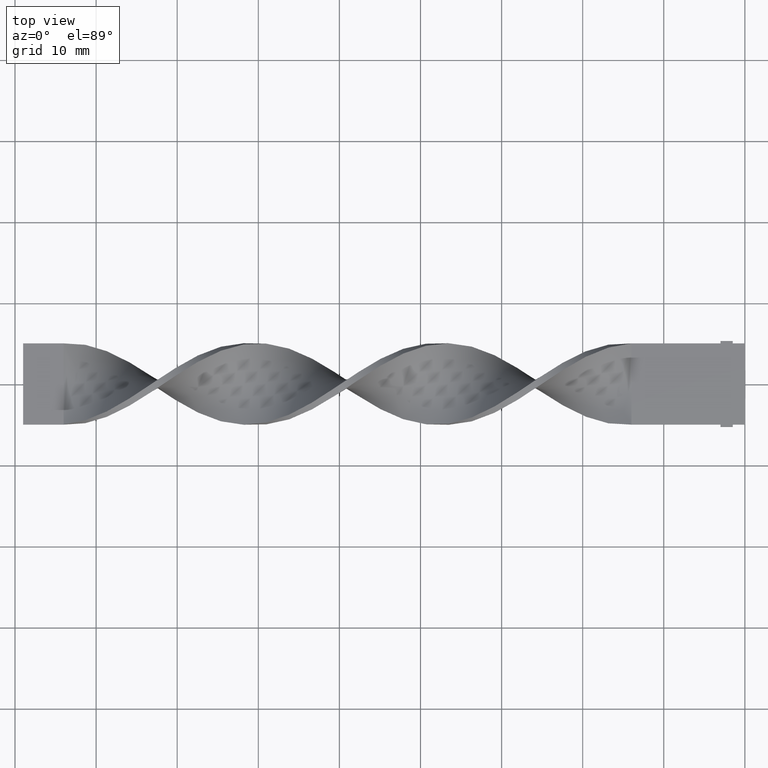
[diagram: clean part render]
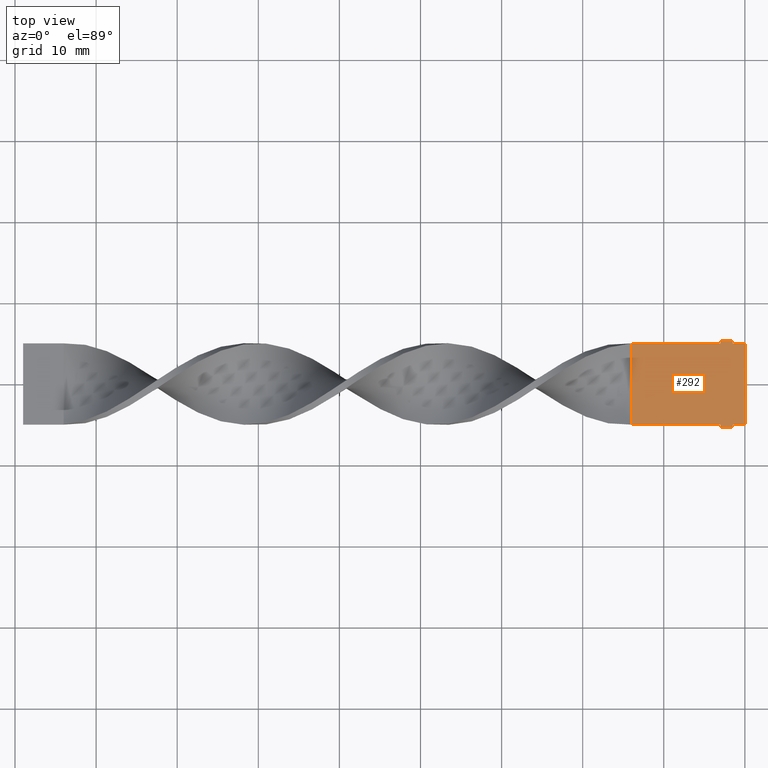
[diagram: same view with one face highlighted and labeled with its STEP entity id]
A machine part, top view. The second image highlights one B-rep face of the part: STEP entity #292.
In plain terms, the highlighted planar face has unit normal (0, 0, 1).
Its self-contained STEP definition (entity closure, byte-faithful):
#5 = VERTEX_POINT ( 'NONE', #707 ) ;
#13 = VERTEX_POINT ( 'NONE', #1213 ) ;
#25 = DIRECTION ( 'NONE',  ( 0.000000000000000000, -1.000000000000000000, 0.000000000000000000 ) ) ;
#46 = LINE ( 'NONE', #412, #109 ) ;
#48 = VECTOR ( 'NONE', #1179, 1000.000000000000000 ) ;
#53 = EDGE_CURVE ( 'NONE', #226, #450, #575, .T. ) ;
#54 = CARTESIAN_POINT ( 'NONE',  ( -1.224646799147352862E-15, 4.999999999999999112, 0.5000000000000000000 ) ) ;
#55 = VERTEX_POINT ( 'NONE', #1581 ) ;
#58 = DIRECTION ( 'NONE',  ( -1.000000000000000000, 0.000000000000000000, 0.000000000000000000 ) ) ;
#60 = ORIENTED_EDGE ( 'NONE', *, *, #1391, .F. ) ;
#63 = CARTESIAN_POINT ( 'NONE',  ( -2.999999999999994671, 4.999999999999999112, 0.5000000000000000000 ) ) ;
#70 = DIRECTION ( 'NONE',  ( -1.000000000000000000, 0.000000000000000000, 0.000000000000000000 ) ) ;
#90 = EDGE_LOOP ( 'NONE', ( #830, #1258, #1257, #1043, #1272, #572, #1184, #1241, #1615, #1374, #378, #60 ) ) ;
#109 = VECTOR ( 'NONE', #70, 1000.000000000000000 ) ;
#131 = CARTESIAN_POINT ( 'NONE',  ( -13.99999999999999822, 4.999999999999997335, 0.5000000000000000000 ) ) ;
#147 = VERTEX_POINT ( 'NONE', #1507 ) ;
#167 = AXIS2_PLACEMENT_3D ( 'NONE', #417, #1539, #1501 ) ;
#172 = CARTESIAN_POINT ( 'NONE',  ( -2.999999999999994671, 4.999999999999999112, 0.5000000000000000000 ) ) ;
#203 = VECTOR ( 'NONE', #1479, 1000.000000000000000 ) ;
#226 = VERTEX_POINT ( 'NONE', #644 ) ;
#253 = LINE ( 'NONE', #264, #203 ) ;
#264 = CARTESIAN_POINT ( 'NONE',  ( -2.999999999999993339, -5.299999999999998934, 0.5000000000000000000 ) ) ;
#289 = CARTESIAN_POINT ( 'NONE',  ( -1.499999999999993561, -4.999999999999999112, 0.5000000000000000000 ) ) ;
#292 = ADVANCED_FACE ( 'NONE', ( #543 ), #1029, .T. ) ;
#373 = DIRECTION ( 'NONE',  ( 1.734723475976807341E-16, -1.000000000000000000, 0.000000000000000000 ) ) ;
#378 = ORIENTED_EDGE ( 'NONE', *, *, #582, .F. ) ;
#379 = VERTEX_POINT ( 'NONE', #1375 ) ;
#404 = CARTESIAN_POINT ( 'NONE',  ( -2.999999999999993339, -4.999999999999999112, 0.5000000000000000000 ) ) ;
#412 = CARTESIAN_POINT ( 'NONE',  ( -1.499999999999993561, -5.299999999999998934, 0.5000000000000000000 ) ) ;
#417 = CARTESIAN_POINT ( 'NONE',  ( 0.000000000000000000, 0.000000000000000000, 0.5000000000000000000 ) ) ;
#418 = EDGE_CURVE ( 'NONE', #1018, #1078, #1530, .T. ) ;
#425 = LINE ( 'NONE', #404, #48 ) ;
#437 = EDGE_CURVE ( 'NONE', #617, #1515, #684, .T. ) ;
#450 = VERTEX_POINT ( 'NONE', #804 ) ;
#486 = VECTOR ( 'NONE', #1559, 1000.000000000000000 ) ;
#543 = FACE_OUTER_BOUND ( 'NONE', #90, .T. ) ;
#547 = CARTESIAN_POINT ( 'NONE',  ( -1.499999999999994893, 5.299999999999998934, 0.5000000000000000000 ) ) ;
#548 = CARTESIAN_POINT ( 'NONE',  ( -13.99999999999999822, 4.999999999999997335, 0.5000000000000000000 ) ) ;
#556 = DIRECTION ( 'NONE',  ( 0.000000000000000000, -1.000000000000000000, 0.000000000000000000 ) ) ;
#572 = ORIENTED_EDGE ( 'NONE', *, *, #1597, .T. ) ;
#575 = LINE ( 'NONE', #1085, #486 ) ;
#582 = EDGE_CURVE ( 'NONE', #5, #1505, #46, .T. ) ;
#617 = VERTEX_POINT ( 'NONE', #63 ) ;
#644 = CARTESIAN_POINT ( 'NONE',  ( 1.925929944387235853E-31, -4.999999999999999112, 0.5000000000000000000 ) ) ;
#681 = DIRECTION ( 'NONE',  ( -1.224646799147353207E-16, 1.000000000000000000, 0.000000000000000000 ) ) ;
#684 = LINE ( 'NONE', #172, #1055 ) ;
#707 = CARTESIAN_POINT ( 'NONE',  ( -1.499999999999993561, -5.299999999999998934, 0.5000000000000000000 ) ) ;
#804 = CARTESIAN_POINT ( 'NONE',  ( -1.499999999999993561, -4.999999999999999112, 0.5000000000000000000 ) ) ;
#815 = DIRECTION ( 'NONE',  ( -1.000000000000000000, -1.577021341797097067E-16, 0.000000000000000000 ) ) ;
#830 = ORIENTED_EDGE ( 'NONE', *, *, #53, .F. ) ;
#874 = EDGE_CURVE ( 'NONE', #1505, #147, #253, .T. ) ;
#885 = EDGE_CURVE ( 'NONE', #379, #1018, #1145, .T. ) ;
#894 = LINE ( 'NONE', #289, #921 ) ;
#909 = CARTESIAN_POINT ( 'NONE',  ( 1.925929944387235853E-31, -4.999999999999999112, 0.5000000000000000000 ) ) ;
#915 = LINE ( 'NONE', #909, #1418 ) ;
#921 = VECTOR ( 'NONE', #556, 1000.000000000000000 ) ;
#964 = EDGE_CURVE ( 'NONE', #1515, #13, #1260, .T. ) ;
#992 = CARTESIAN_POINT ( 'NONE',  ( -2.999999999999994671, 5.299999999999998934, 0.5000000000000000000 ) ) ;
#1002 = DIRECTION ( 'NONE',  ( 0.000000000000000000, 1.000000000000000000, 0.000000000000000000 ) ) ;
#1008 = CARTESIAN_POINT ( 'NONE',  ( -1.499999999999994893, 5.299999999999998934, 0.5000000000000000000 ) ) ;
#1018 = VERTEX_POINT ( 'NONE', #1008 ) ;
#1029 = PLANE ( 'NONE',  #167 ) ;
#1043 = ORIENTED_EDGE ( 'NONE', *, *, #885, .T. ) ;
#1044 = LINE ( 'NONE', #54, #1143 ) ;
#1055 = VECTOR ( 'NONE', #815, 1000.000000000000000 ) ;
#1076 = CARTESIAN_POINT ( 'NONE',  ( -2.999999999999993339, -5.299999999999998934, 0.5000000000000000000 ) ) ;
#1078 = VERTEX_POINT ( 'NONE', #992 ) ;
#1085 = CARTESIAN_POINT ( 'NONE',  ( 1.925929944387235853E-31, -4.999999999999999112, 0.5000000000000000000 ) ) ;
#1120 = VECTOR ( 'NONE', #58, 1000.000000000000000 ) ;
#1134 = LINE ( 'NONE', #1249, #1371 ) ;
#1143 = VECTOR ( 'NONE', #1392, 1000.000000000000000 ) ;
#1145 = LINE ( 'NONE', #1383, #1172 ) ;
#1172 = VECTOR ( 'NONE', #1002, 1000.000000000000000 ) ;
#1179 = DIRECTION ( 'NONE',  ( -1.000000000000000000, -1.577021341797097067E-16, 0.000000000000000000 ) ) ;
#1184 = ORIENTED_EDGE ( 'NONE', *, *, #437, .T. ) ;
#1213 = CARTESIAN_POINT ( 'NONE',  ( -13.99999999999999645, -5.000000000000000888, 0.5000000000000000000 ) ) ;
#1232 = EDGE_CURVE ( 'NONE', #147, #13, #425, .T. ) ;
#1241 = ORIENTED_EDGE ( 'NONE', *, *, #964, .T. ) ;
#1249 = CARTESIAN_POINT ( 'NONE',  ( -2.999999999999994671, 5.299999999999998934, 0.5000000000000000000 ) ) ;
#1257 = ORIENTED_EDGE ( 'NONE', *, *, #1416, .T. ) ;
#1258 = ORIENTED_EDGE ( 'NONE', *, *, #1259, .T. ) ;
#1259 = EDGE_CURVE ( 'NONE', #226, #55, #915, .T. ) ;
#1260 = LINE ( 'NONE', #131, #1271 ) ;
#1271 = VECTOR ( 'NONE', #373, 1000.000000000000000 ) ;
#1272 = ORIENTED_EDGE ( 'NONE', *, *, #418, .T. ) ;
#1371 = VECTOR ( 'NONE', #25, 1000.000000000000000 ) ;
#1374 = ORIENTED_EDGE ( 'NONE', *, *, #874, .F. ) ;
#1375 = CARTESIAN_POINT ( 'NONE',  ( -1.499999999999994893, 4.999999999999999112, 0.5000000000000000000 ) ) ;
#1383 = CARTESIAN_POINT ( 'NONE',  ( -1.499999999999994893, 4.999999999999999112, 0.5000000000000000000 ) ) ;
#1391 = EDGE_CURVE ( 'NONE', #450, #5, #894, .T. ) ;
#1392 = DIRECTION ( 'NONE',  ( -1.000000000000000000, 0.000000000000000000, 0.000000000000000000 ) ) ;
#1416 = EDGE_CURVE ( 'NONE', #55, #379, #1044, .T. ) ;
#1418 = VECTOR ( 'NONE', #681, 1000.000000000000000 ) ;
#1479 = DIRECTION ( 'NONE',  ( 0.000000000000000000, 1.000000000000000000, 0.000000000000000000 ) ) ;
#1501 = DIRECTION ( 'NONE',  ( 1.000000000000000000, 0.000000000000000000, -0.000000000000000000 ) ) ;
#1505 = VERTEX_POINT ( 'NONE', #1076 ) ;
#1507 = CARTESIAN_POINT ( 'NONE',  ( -2.999999999999993339, -4.999999999999999112, 0.5000000000000000000 ) ) ;
#1515 = VERTEX_POINT ( 'NONE', #548 ) ;
#1530 = LINE ( 'NONE', #547, #1120 ) ;
#1539 = DIRECTION ( 'NONE',  ( 0.000000000000000000, 0.000000000000000000, 1.000000000000000000 ) ) ;
#1559 = DIRECTION ( 'NONE',  ( -1.000000000000000000, 0.000000000000000000, 0.000000000000000000 ) ) ;
#1581 = CARTESIAN_POINT ( 'NONE',  ( -1.224646799147352862E-15, 4.999999999999999112, 0.5000000000000000000 ) ) ;
#1597 = EDGE_CURVE ( 'NONE', #1078, #617, #1134, .T. ) ;
#1615 = ORIENTED_EDGE ( 'NONE', *, *, #1232, .F. ) ;